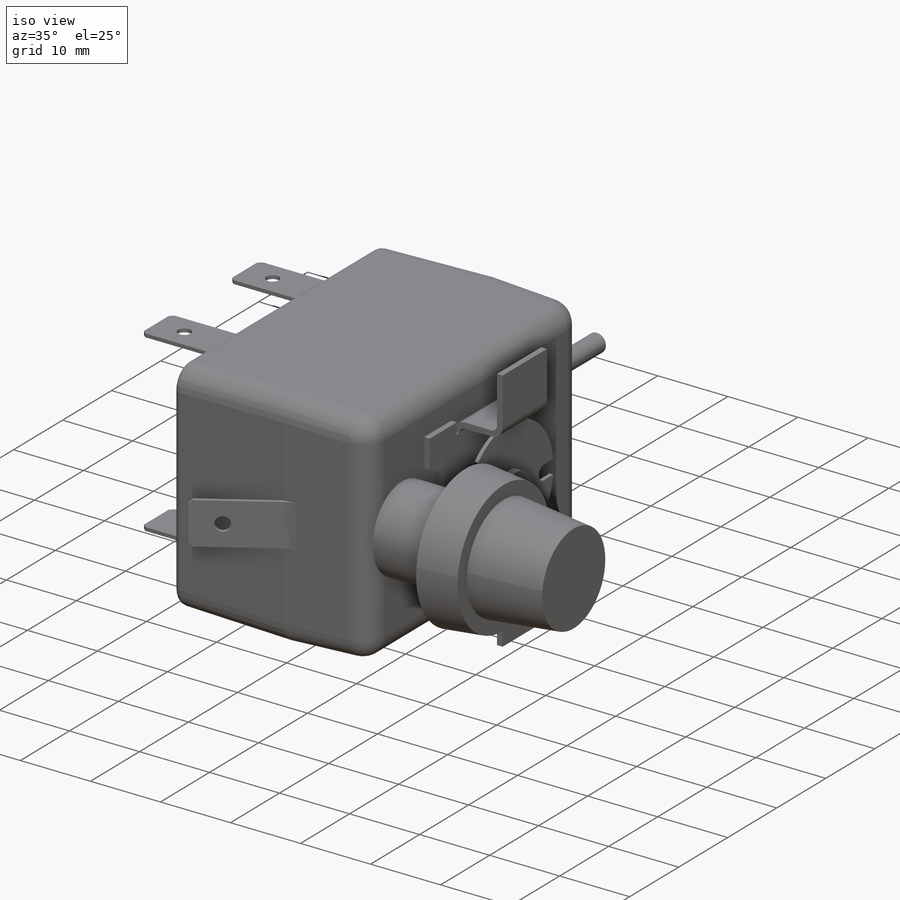
[diagram: iso view]
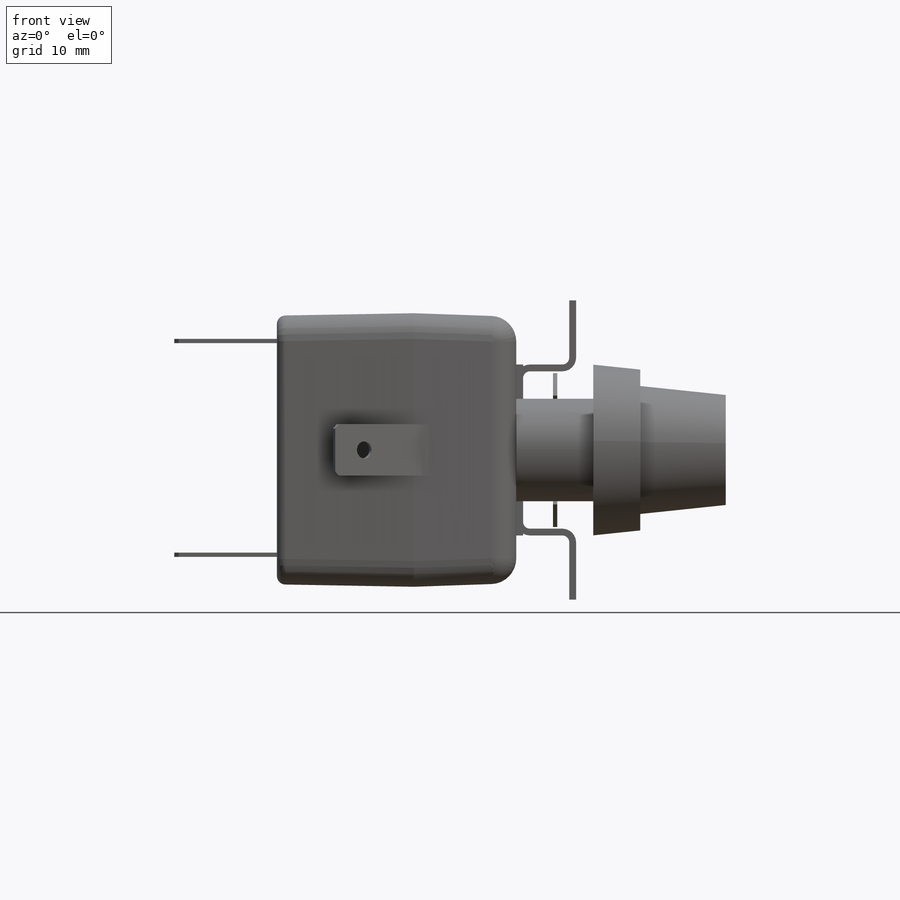
[diagram: front view]
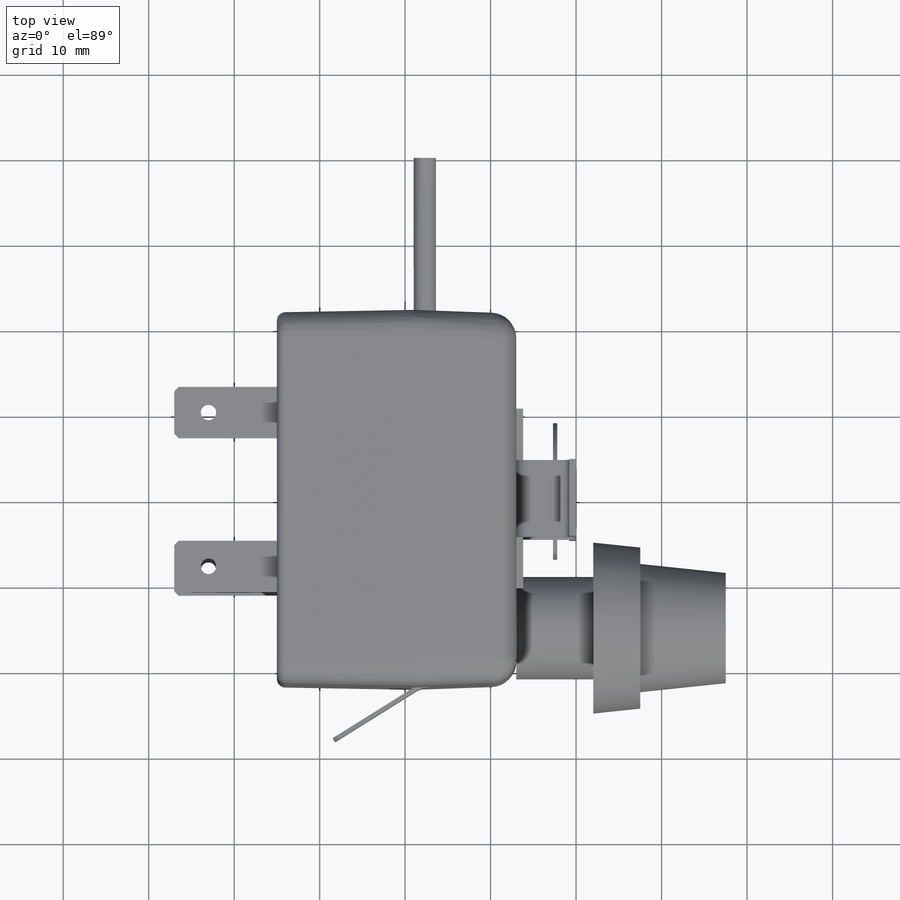
[diagram: top view]
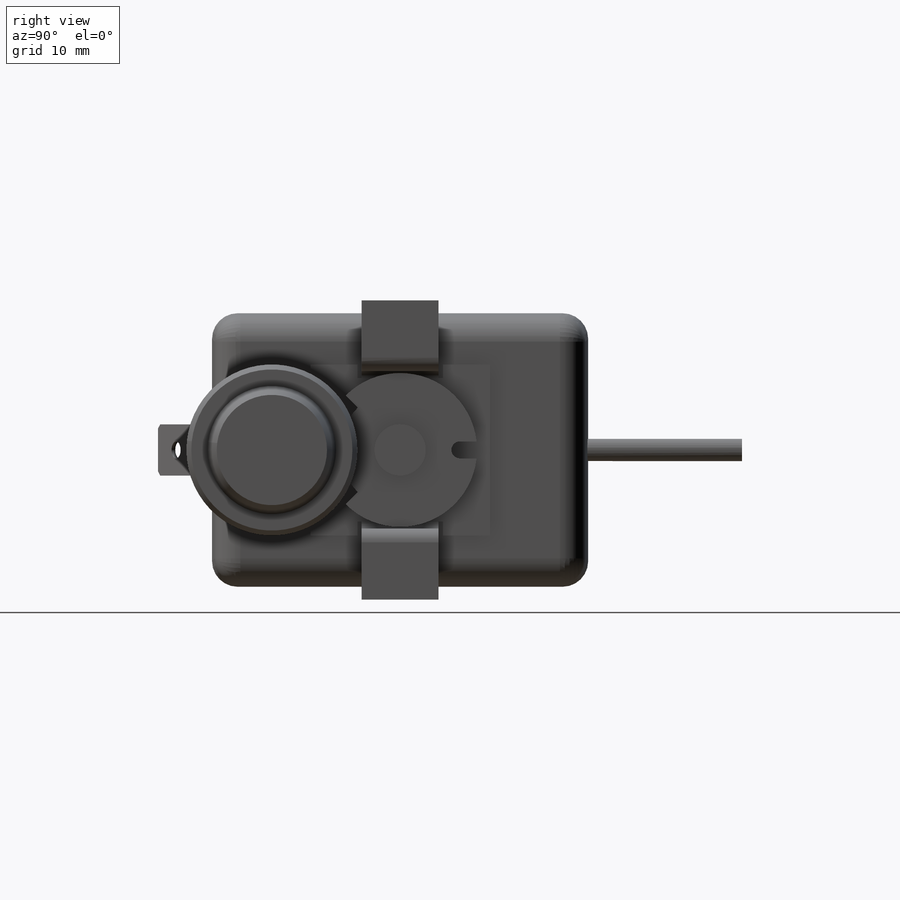
[diagram: right view]
SOLIDWORKS PART (.sldprt)
format: sldprt  version: not decoded by parser v0  size: 702,464 bytes
history: native  units: mm
features: sketch x16, sheet_metal_op x6, extrude x5, cut_extrude x4, delete_body x4, plane x3, revolve x3, fillet x3, chamfer x2, pattern_linear x2, material x1 + 3 further entries (+8 scaffold rows collapsed)
feature tree (60):
  scaffold x8  (default folders/planes/origin — collapsed)
  material  "Materiál <není určen>"
  "Těla ploch"
  plane  "Horní"
  plane  "Přední"
  plane  "Pravá"
  sketch  "Skica1"  dims[D5=110.0mm D1=5.0mm D2=55.0mm D3=42.0mm D4=18.0mm D6=12.0mm D7=6.2mm]
  revolve  "Rotovat1"  Angle=360deg
  sketch  "Skica2"  dims[c1.D1=6.2mm c1.D2=20.0mm c1.D3=35.0mm c2.D2=20.0mm c2.D1=7.0mm c2.D4=0.8mm]
  sheet_metal_op  "Plechový díl1"
  sheet_metal_op  "Základní plech1"
  sheet_metal_op  "Základní ohyb2"
  sheet_metal_op  "Základní ohyb3"
  sheet_metal_op  "Základní ohyb4"
  sketch  "Skica5"  dims[D1=0.5mm D2=21.0mm]
  sheet_metal_op  "Ouško1"
  sketch  "Skica6"  dims[D1=44.0mm D2=32.0mm]
  extrude  "Přidat vysunutím1"  Depth=12mm
  sketch  "Skica7"  dims[D1=0.0mm]
  extrude  "Přidat vysunutím2"  Depth=16mm
  fillet  "Zaoblit1"  Radius=3mm
  fillet  "Zaoblit2"  Radius=3mm
  sketch  "Skica8"  dims[D1=2.6mm]
  extrude  "Přidat vysunutím3"  Depth=40mm
  sketch  "Skica9"  dims[c1.D1=0.5mm c1.D2=~7.695673mm c2.D2=30.0deg c2.D3=12.0mm]
  extrude  "Přidat vysunutím4"  Depth=6mm
  fillet  "Zaoblit3"  Radius=3mm
  chamfer  "Zkosení1"  Distance=0.5mm Angle=45deg
  sketch  "Skica10"  dims[D1=2.0mm D2=4.0mm]
  cut_extrude  "Odebrat vysunutím1"  [1 undecoded]
  sketch  "Skica11"  dims[D1=26.0mm D2=6.0mm D3=11.0mm D4=0.5mm D7=24.0mm D8=25.5mm]
  extrude  "Přidat vysunutím5"  Depth=12mm
  chamfer  "Zkosení2"  Distance=0.5mm Angle=45deg
  sketch  "Skica12"  dims[D2=1.8mm D1=4.0mm]
  cut_extrude  "Odebrat vysunutím2"  [1 undecoded]
  pattern_linear  "LinPole1"  Count1=2 Count2=2 Spacing1=25mm Spacing2=18mm
  delete_body  "Tělo-Odstranit1"
  sketch  "Skica13"  dims[D1=6.0mm D2=18.0mm D3=0.5mm D4=1.0mm D5=4.0mm]
  revolve  "Rotovat2"  Angle=360deg
  sketch  "Skica14"  dims[c1.D2=1.0mm c1.D3=9.0mm c1.D1=2.0mm c2.D2=3.0mm c2.D3=2.0mm c2.D4=~1.313415mm c3.D4=90.0deg]
  cut_extrude  "Odebrat vysunutím3"  [1 undecoded]
  sketch  "Skica16"  dims[c1.D1=12.0mm c1.D2=3.0mm c1.D3=3.0mm c2.D3=60.0deg]
  cut_extrude  "Odebrat vysunutím4"  [1 undecoded]
  sketch  "Skica15"  dims[c1.D1=12.0mm c1.D2=9.0mm c1.D3=31.5mm c1.D4=10.0mm c1.D5=24.5mm c1.D6=15.0mm c1.D7=13.0mm c1.D8=10.0mm c2.D8=~5.710593deg c2.D7=~10.049876mm c3.D7=6.0deg c3.D8=20.0mm]
  revolve  "Rotovat3"  Angle=360deg
  pattern_linear  "Rozdělit2"  [2 undecoded]
  "Rozvinutý tvar1"
  sketch  "Čáry ohybu1"
  sketch  "Vymezovací rámeček1"
  delete_body  "Rozvinutí-<Základní ohyb2>1"
  delete_body  "Rozvinutí-<Základní ohyb3>1"
  delete_body  "Rozvinutí-<Základní ohyb4>1"
  "Transformace skici1"
decode coverage: 28 of 45 modeling features carry decoded parameters; 3 rows unclassified (native names shown)
note: ~ marks probable driven/reference dimensions
note: 6 parameter values undecoded
summary: no parameter record found for 4 features
note: suppression state not decoded; provenance and decode notes live in map.json
